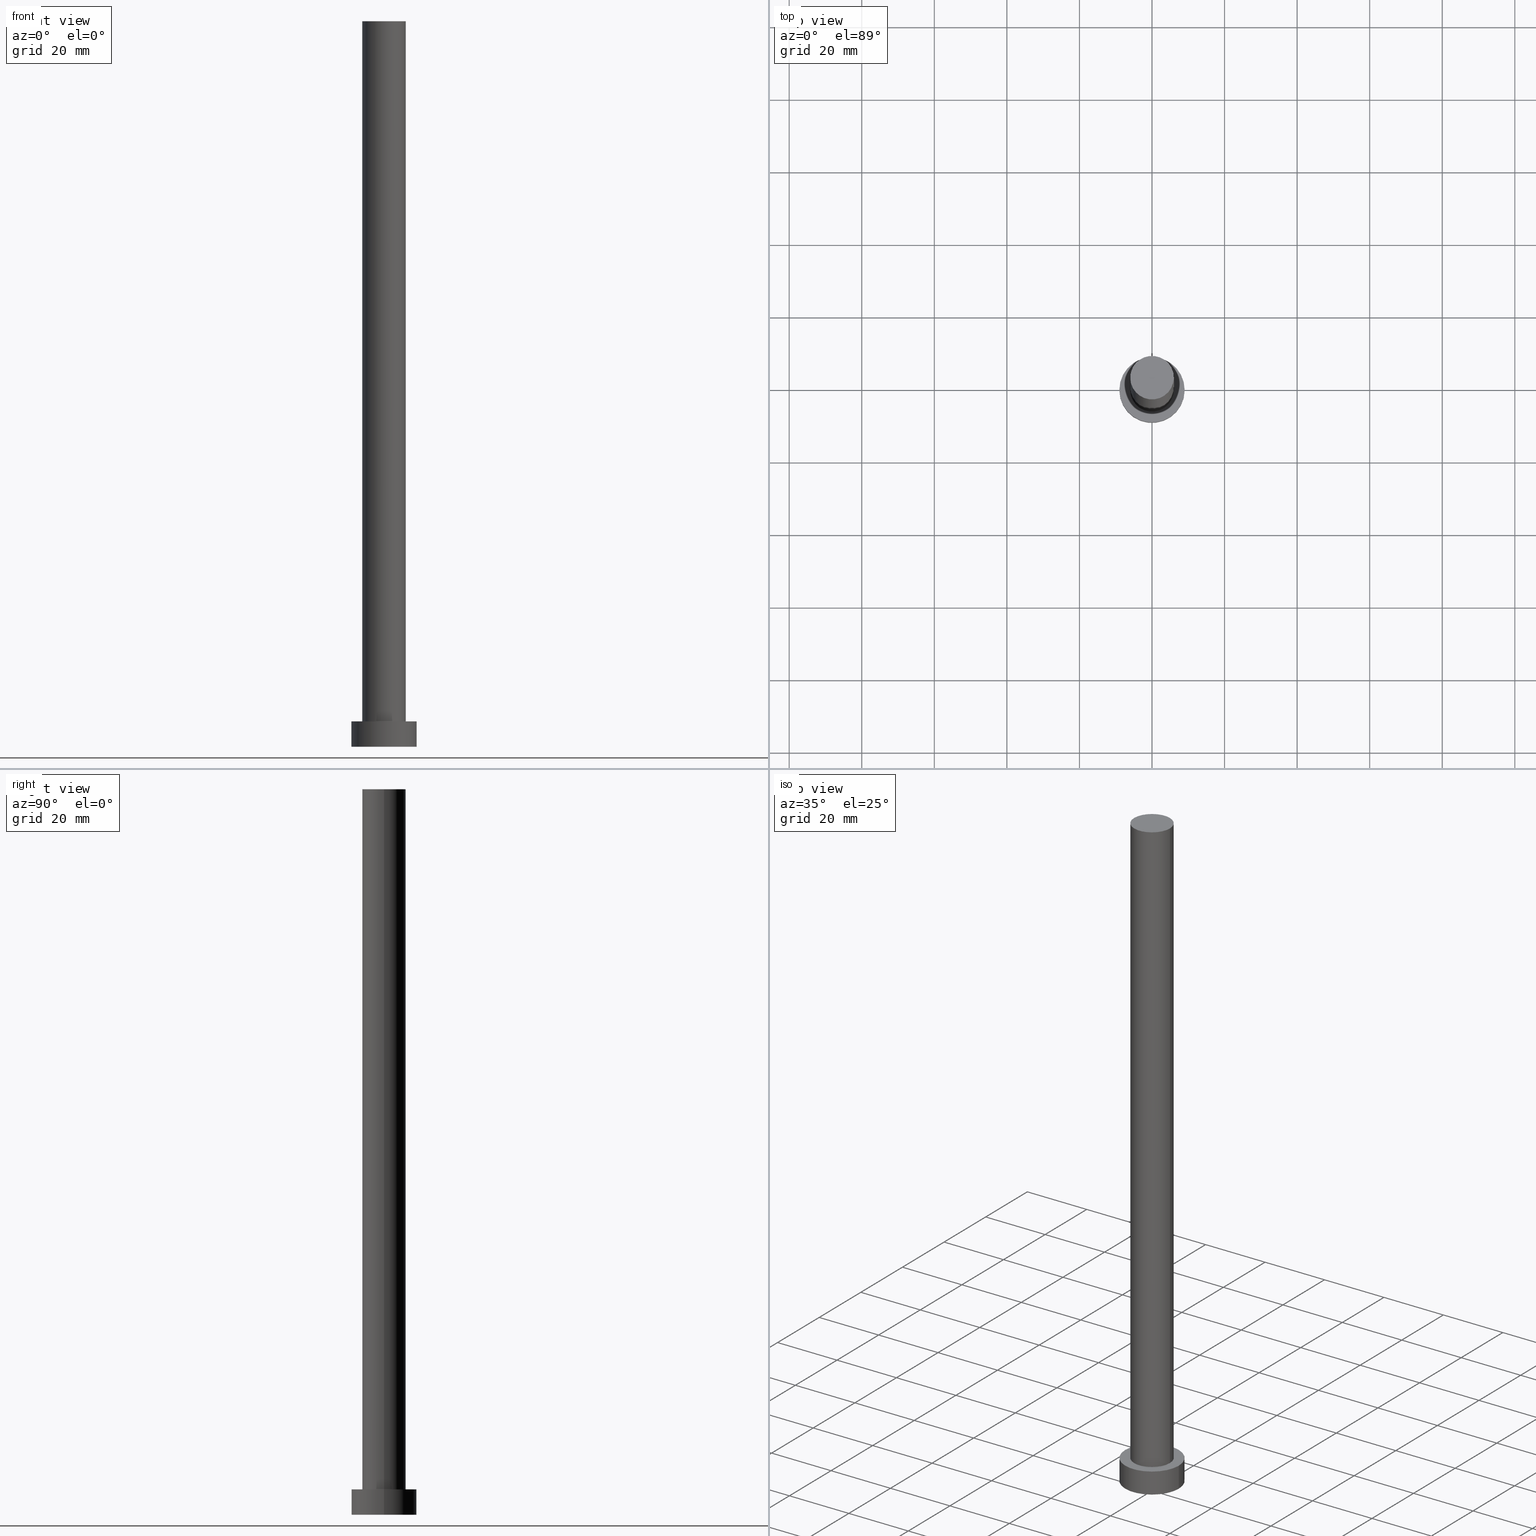
[diagram: canonical four-view strip — front | top / right | iso, engineering-drawing reading convention]
A machine part, canonical four-view strip (front | top / right | iso — engineering-drawing reading convention). The complete STEP part file that produces these views, byte-faithful:
ISO-10303-21;
HEADER;
FILE_DESCRIPTION (( 'STEP AP203' ),
    '1' );
FILE_NAME ('bf85.STEP',
    '2023-02-12T10:49:33',
    ( '' ),
    ( '' ),
    'SwSTEP 2.0',
    'SolidWorks 2019',
    '' );
FILE_SCHEMA (( 'CONFIG_CONTROL_DESIGN' ));
ENDSEC;

DATA;
#1 = ORIENTED_EDGE ( 'NONE', *, *, #144, .F. ) ;
#2 = EDGE_CURVE ( 'NONE', #11, #214, #76, .T. ) ;
#3 = EDGE_LOOP ( 'NONE', ( #149, #58 ) ) ;
#4 = VECTOR ( 'NONE', #139, 1000.000000000000000 ) ;
#5 = APPLICATION_CONTEXT ( 'configuration controlled 3d designs of mechanical parts and assemblies' ) ;
#6 = DIRECTION ( 'NONE',  ( -0.000000000000000000, -0.000000000000000000, -1.000000000000000000 ) ) ;
#7 = ADVANCED_BREP_SHAPE_REPRESENTATION ( 'bf85', ( #171, #148 ), #45 ) ;
#8 = LOCAL_TIME ( 11, 49, 33.00000000000000000, #161 ) ;
#9 = CYLINDRICAL_SURFACE ( 'NONE', #121, 6.000000000000000888 ) ;
#10 = CARTESIAN_POINT ( 'NONE',  ( -6.000000000000000888, 0.000000000000000000, 7.000000000000000000 ) ) ;
#11 = VERTEX_POINT ( 'NONE', #10 ) ;
#12 = DIRECTION ( 'NONE',  ( 0.000000000000000000, 0.000000000000000000, 1.000000000000000000 ) ) ;
#13 = DIRECTION ( 'NONE',  ( 1.000000000000000000, 0.000000000000000000, -0.000000000000000000 ) ) ;
#14 = EDGE_CURVE ( 'NONE', #214, #11, #44, .T. ) ;
#15 = CALENDAR_DATE ( 2023, 12, 2 ) ;
#16 = ORIENTED_EDGE ( 'NONE', *, *, #27, .T. ) ;
#17 = LINE ( 'NONE', #109, #4 ) ;
#18 = PERSON_AND_ORGANIZATION ( #208, #138 ) ;
#19 = PERSON_AND_ORGANIZATION_ROLE ( 'creator' ) ;
#20 = DIRECTION ( 'NONE',  ( 1.000000000000000000, 0.000000000000000000, -0.000000000000000000 ) ) ;
#21 = ADVANCED_FACE ( 'NONE', ( #136 ), #70, .T. ) ;
#22 = APPROVAL_ROLE ( '' ) ;
#23 = COORDINATED_UNIVERSAL_TIME_OFFSET ( 1, 0, .AHEAD. ) ;
#24 = PERSON_AND_ORGANIZATION_ROLE ( 'design_owner' ) ;
#25 = CC_DESIGN_PERSON_AND_ORGANIZATION_ASSIGNMENT ( #153, #51, ( #117 ) ) ;
#26 = AXIS2_PLACEMENT_3D ( 'NONE', #236, #89, #237 ) ;
#27 = EDGE_CURVE ( 'NONE', #211, #83, #106, .T. ) ;
#28 = PRODUCT ( 'bf85', 'bf85', '', ( #254 ) ) ;
#29 = DIRECTION ( 'NONE',  ( -0.000000000000000000, -0.000000000000000000, -1.000000000000000000 ) ) ;
#30 = CYLINDRICAL_SURFACE ( 'NONE', #156, 9.000000000000000000 ) ;
#31 = CC_DESIGN_SECURITY_CLASSIFICATION ( #117, ( #163 ) ) ;
#32 = DIRECTION ( 'NONE',  ( 0.000000000000000000, 0.000000000000000000, 1.000000000000000000 ) ) ;
#33 = PRODUCT_RELATED_PRODUCT_CATEGORY ( 'detail', '', ( #28 ) ) ;
#34 = COORDINATED_UNIVERSAL_TIME_OFFSET ( 1, 0, .AHEAD. ) ;
#35 = CARTESIAN_POINT ( 'NONE',  ( -9.000000000000000000, 0.000000000000000000, 7.000000000000000000 ) ) ;
#36 = ORIENTED_EDGE ( 'NONE', *, *, #14, .T. ) ;
#37 = LINE ( 'NONE', #152, #255 ) ;
#38 = CC_DESIGN_APPROVAL ( #57, ( #181 ) ) ;
#39 = CC_DESIGN_DATE_AND_TIME_ASSIGNMENT ( #232, #167, ( #181 ) ) ;
#40 = APPLICATION_PROTOCOL_DEFINITION ( 'international standard', 'config_control_design', 1994, #61 ) ;
#41 = ORIENTED_EDGE ( 'NONE', *, *, #234, .T. ) ;
#42 = EDGE_LOOP ( 'NONE', ( #212, #63 ) ) ;
#43 = ORIENTED_EDGE ( 'NONE', *, *, #203, .F. ) ;
#44 = CIRCLE ( 'NONE', #216, 6.000000000000000888 ) ;
#45 =( GEOMETRIC_REPRESENTATION_CONTEXT ( 3 ) GLOBAL_UNCERTAINTY_ASSIGNED_CONTEXT ( ( #238 ) ) GLOBAL_UNIT_ASSIGNED_CONTEXT ( ( #79, #220, #250 ) ) REPRESENTATION_CONTEXT ( 'NONE', 'WORKASPACE' ) );
#46 = FACE_OUTER_BOUND ( 'NONE', #100, .T. ) ;
#47 = CARTESIAN_POINT ( 'NONE',  ( 0.000000000000000000, 0.000000000000000000, 7.000000000000000000 ) ) ;
#48 = AXIS2_PLACEMENT_3D ( 'NONE', #47, #173, #72 ) ;
#49 = CC_DESIGN_APPROVAL ( #107, ( #163 ) ) ;
#50 = FACE_OUTER_BOUND ( 'NONE', #188, .T. ) ;
#51 = PERSON_AND_ORGANIZATION_ROLE ( 'classification_officer' ) ;
#52 = APPROVAL_ROLE ( '' ) ;
#53 = ORIENTED_EDGE ( 'NONE', *, *, #190, .T. ) ;
#54 = DIRECTION ( 'NONE',  ( 0.000000000000000000, 0.000000000000000000, 1.000000000000000000 ) ) ;
#55 = AXIS2_PLACEMENT_3D ( 'NONE', #207, #246, #162 ) ;
#56 = CARTESIAN_POINT ( 'NONE',  ( -9.000000000000000000, 0.000000000000000000, 7.000000000000000000 ) ) ;
#57 = APPROVAL ( #186, 'NEUR�EN�' ) ;
#58 = ORIENTED_EDGE ( 'NONE', *, *, #14, .F. ) ;
#59 = DIRECTION ( 'NONE',  ( 0.000000000000000000, 0.000000000000000000, 1.000000000000000000 ) ) ;
#60 = FACE_OUTER_BOUND ( 'NONE', #200, .T. ) ;
#61 = APPLICATION_CONTEXT ( 'configuration controlled 3d designs of mechanical parts and assemblies' ) ;
#62 = ADVANCED_FACE ( 'NONE', ( #50 ), #30, .T. ) ;
#63 = ORIENTED_EDGE ( 'NONE', *, *, #234, .F. ) ;
#64 = APPROVAL ( #180, 'NEUR�EN�' ) ;
#65 = AXIS2_PLACEMENT_3D ( 'NONE', #128, #205, #206 ) ;
#66 = ORIENTED_EDGE ( 'NONE', *, *, #98, .T. ) ;
#67 = CLOSED_SHELL ( 'NONE', ( #87, #62, #120, #127, #189, #21, #243 ) ) ;
#68 = CARTESIAN_POINT ( 'NONE',  ( 9.000000000000000000, 1.102182119232617714E-15, 7.000000000000000000 ) ) ;
#69 = EDGE_CURVE ( 'NONE', #83, #222, #88, .T. ) ;
#70 = CYLINDRICAL_SURFACE ( 'NONE', #253, 6.000000000000000888 ) ;
#71 = ORIENTED_EDGE ( 'NONE', *, *, #27, .F. ) ;
#72 = DIRECTION ( 'NONE',  ( 1.000000000000000000, 0.000000000000000000, 0.000000000000000000 ) ) ;
#73 = DATE_AND_TIME ( #183, #170 ) ;
#74 = DIRECTION ( 'NONE',  ( 0.000000000000000000, 0.000000000000000000, 1.000000000000000000 ) ) ;
#75 = CALENDAR_DATE ( 2023, 12, 2 ) ;
#76 = CIRCLE ( 'NONE', #48, 6.000000000000000888 ) ;
#77 = LOCAL_TIME ( 11, 49, 33.00000000000000000, #23 ) ;
#78 = ORIENTED_EDGE ( 'NONE', *, *, #144, .T. ) ;
#79 =( LENGTH_UNIT ( ) NAMED_UNIT ( * ) SI_UNIT ( .MILLI., .METRE. ) );
#80 = DIRECTION ( 'NONE',  ( 1.000000000000000000, 0.000000000000000000, 0.000000000000000000 ) ) ;
#81 = DATE_AND_TIME ( #75, #90 ) ;
#82 = CIRCLE ( 'NONE', #185, 6.000000000000000888 ) ;
#83 = VERTEX_POINT ( 'NONE', #68 ) ;
#84 = CALENDAR_DATE ( 2023, 12, 2 ) ;
#85 = PERSON_AND_ORGANIZATION ( #208, #138 ) ;
#86 = CARTESIAN_POINT ( 'NONE',  ( 9.000000000000000000, 1.102182119232617714E-15, 7.000000000000000000 ) ) ;
#87 = ADVANCED_FACE ( 'NONE', ( #46 ), #9, .T. ) ;
#88 = LINE ( 'NONE', #86, #192 ) ;
#89 = DIRECTION ( 'NONE',  ( 0.000000000000000000, 0.000000000000000000, 1.000000000000000000 ) ) ;
#90 = LOCAL_TIME ( 11, 49, 33.00000000000000000, #204 ) ;
#91 = PERSON_AND_ORGANIZATION ( #208, #138 ) ;
#92 = DIRECTION ( 'NONE',  ( 1.000000000000000000, 0.000000000000000000, 0.000000000000000000 ) ) ;
#93 = CARTESIAN_POINT ( 'NONE',  ( -6.000000000000000888, 0.000000000000000000, 200.0000000000000000 ) ) ;
#94 = PERSON_AND_ORGANIZATION_ROLE ( 'design_supplier' ) ;
#95 = ORIENTED_EDGE ( 'NONE', *, *, #164, .T. ) ;
#96 = CC_DESIGN_PERSON_AND_ORGANIZATION_ASSIGNMENT ( #118, #24, ( #28 ) ) ;
#97 = CC_DESIGN_DATE_AND_TIME_ASSIGNMENT ( #73, #177, ( #117 ) ) ;
#98 = EDGE_CURVE ( 'NONE', #133, #135, #235, .T. ) ;
#99 = LOCAL_TIME ( 11, 49, 33.00000000000000000, #165 ) ;
#100 = EDGE_LOOP ( 'NONE', ( #176, #130, #36, #1 ) ) ;
#101 = CALENDAR_DATE ( 2023, 12, 2 ) ;
#102 = EDGE_CURVE ( 'NONE', #133, #214, #17, .T. ) ;
#103 = DIRECTION ( 'NONE',  ( 0.000000000000000000, 0.000000000000000000, 1.000000000000000000 ) ) ;
#104 = CC_DESIGN_PERSON_AND_ORGANIZATION_ASSIGNMENT ( #241, #94, ( #163 ) ) ;
#105 = CARTESIAN_POINT ( 'NONE',  ( 0.000000000000000000, 0.000000000000000000, 7.000000000000000000 ) ) ;
#106 = CIRCLE ( 'NONE', #26, 9.000000000000000000 ) ;
#107 = APPROVAL ( #123, 'NEUR�EN�' ) ;
#108 = CIRCLE ( 'NONE', #219, 9.000000000000000000 ) ;
#109 = CARTESIAN_POINT ( 'NONE',  ( 6.000000000000000888, 7.347880794884120722E-16, 200.0000000000000000 ) ) ;
#110 = DIRECTION ( 'NONE',  ( 1.000000000000000000, 0.000000000000000000, 0.000000000000000000 ) ) ;
#111 = APPROVAL_DATE_TIME ( #249, #107 ) ;
#112 = PLANE ( 'NONE',  #231 ) ;
#113 = AXIS2_PLACEMENT_3D ( 'NONE', #145, #229, #80 ) ;
#114 = AXIS2_PLACEMENT_3D ( 'NONE', #223, #54, #20 ) ;
#115 = PERSON_AND_ORGANIZATION ( #208, #138 ) ;
#116 = EDGE_LOOP ( 'NONE', ( #16, #147 ) ) ;
#117 = SECURITY_CLASSIFICATION ( '', '', #225 ) ;
#118 = PERSON_AND_ORGANIZATION ( #208, #138 ) ;
#119 = CC_DESIGN_APPROVAL ( #64, ( #117 ) ) ;
#120 = ADVANCED_FACE ( 'NONE', ( #60 ), #159, .T. ) ;
#121 = AXIS2_PLACEMENT_3D ( 'NONE', #194, #29, #174 ) ;
#122 = VECTOR ( 'NONE', #141, 1000.000000000000000 ) ;
#123 = APPROVAL_STATUS ( 'not_yet_approved' ) ;
#124 = CARTESIAN_POINT ( 'NONE',  ( 0.000000000000000000, 0.000000000000000000, 200.0000000000000000 ) ) ;
#125 = ORIENTED_EDGE ( 'NONE', *, *, #190, .F. ) ;
#126 = CARTESIAN_POINT ( 'NONE',  ( 0.000000000000000000, 0.000000000000000000, 0.000000000000000000 ) ) ;
#127 = ADVANCED_FACE ( 'NONE', ( #132, #142 ), #209, .T. ) ;
#128 = CARTESIAN_POINT ( 'NONE',  ( 0.000000000000000000, 0.000000000000000000, 0.000000000000000000 ) ) ;
#129 = CARTESIAN_POINT ( 'NONE',  ( 0.000000000000000000, 0.000000000000000000, 7.000000000000000000 ) ) ;
#130 = ORIENTED_EDGE ( 'NONE', *, *, #102, .T. ) ;
#131 = CIRCLE ( 'NONE', #224, 9.000000000000000000 ) ;
#132 = FACE_BOUND ( 'NONE', #3, .T. ) ;
#133 = VERTEX_POINT ( 'NONE', #251 ) ;
#134 = APPROVAL_DATE_TIME ( #146, #57 ) ;
#135 = VERTEX_POINT ( 'NONE', #93 ) ;
#136 = FACE_OUTER_BOUND ( 'NONE', #151, .T. ) ;
#137 = PLANE ( 'NONE',  #114 ) ;
#138 = ORGANIZATION ( 'NEUR�EN�', 'NEUR�EN�', '' ) ;
#139 = DIRECTION ( 'NONE',  ( -0.000000000000000000, -0.000000000000000000, -1.000000000000000000 ) ) ;
#140 = APPROVAL_ROLE ( '' ) ;
#141 = DIRECTION ( 'NONE',  ( -0.000000000000000000, -0.000000000000000000, -1.000000000000000000 ) ) ;
#142 = FACE_OUTER_BOUND ( 'NONE', #116, .T. ) ;
#143 = LINE ( 'NONE', #35, #122 ) ;
#144 = EDGE_CURVE ( 'NONE', #135, #11, #37, .T. ) ;
#145 = CARTESIAN_POINT ( 'NONE',  ( 0.000000000000000000, 0.000000000000000000, 200.0000000000000000 ) ) ;
#146 = DATE_AND_TIME ( #84, #99 ) ;
#147 = ORIENTED_EDGE ( 'NONE', *, *, #203, .T. ) ;
#148 = AXIS2_PLACEMENT_3D ( 'NONE', #187, #210, #169 ) ;
#149 = ORIENTED_EDGE ( 'NONE', *, *, #2, .F. ) ;
#150 = AXIS2_PLACEMENT_3D ( 'NONE', #129, #32, #13 ) ;
#151 = EDGE_LOOP ( 'NONE', ( #178, #239, #78, #230 ) ) ;
#152 = CARTESIAN_POINT ( 'NONE',  ( -6.000000000000000888, 0.000000000000000000, 200.0000000000000000 ) ) ;
#153 = PERSON_AND_ORGANIZATION ( #208, #138 ) ;
#154 = ORIENTED_EDGE ( 'NONE', *, *, #69, .T. ) ;
#155 = SHAPE_DEFINITION_REPRESENTATION ( #240, #7 ) ;
#156 = AXIS2_PLACEMENT_3D ( 'NONE', #105, #221, #175 ) ;
#157 = CARTESIAN_POINT ( 'NONE',  ( 0.000000000000000000, 0.000000000000000000, 0.000000000000000000 ) ) ;
#158 = APPROVAL_PERSON_ORGANIZATION ( #115, #57, #22 ) ;
#159 = CYLINDRICAL_SURFACE ( 'NONE', #55, 9.000000000000000000 ) ;
#160 = CC_DESIGN_PERSON_AND_ORGANIZATION_ASSIGNMENT ( #85, #213, ( #181 ) ) ;
#161 = COORDINATED_UNIVERSAL_TIME_OFFSET ( 1, 0, .AHEAD. ) ;
#162 = DIRECTION ( 'NONE',  ( -1.000000000000000000, 0.000000000000000000, 0.000000000000000000 ) ) ;
#163 = PRODUCT_DEFINITION_FORMATION_WITH_SPECIFIED_SOURCE ( 'LIBOVOLN�', '', #28, .NOT_KNOWN. ) ;
#164 = EDGE_CURVE ( 'NONE', #135, #133, #82, .T. ) ;
#165 = COORDINATED_UNIVERSAL_TIME_OFFSET ( 1, 0, .AHEAD. ) ;
#166 = EDGE_LOOP ( 'NONE', ( #95, #66 ) ) ;
#167 = DATE_TIME_ROLE ( 'creation_date' ) ;
#168 = ORIENTED_EDGE ( 'NONE', *, *, #252, .T. ) ;
#169 = DIRECTION ( 'NONE',  ( 1.000000000000000000, 0.000000000000000000, 0.000000000000000000 ) ) ;
#170 = LOCAL_TIME ( 11, 49, 33.00000000000000000, #34 ) ;
#171 = MANIFOLD_SOLID_BREP ( 'P�idat vysunut�m3', #67 ) ;
#172 = PERSON_AND_ORGANIZATION ( #208, #138 ) ;
#173 = DIRECTION ( 'NONE',  ( 0.000000000000000000, 0.000000000000000000, 1.000000000000000000 ) ) ;
#174 = DIRECTION ( 'NONE',  ( -1.000000000000000000, 0.000000000000000000, 0.000000000000000000 ) ) ;
#175 = DIRECTION ( 'NONE',  ( -1.000000000000000000, 0.000000000000000000, 0.000000000000000000 ) ) ;
#176 = ORIENTED_EDGE ( 'NONE', *, *, #98, .F. ) ;
#177 = DATE_TIME_ROLE ( 'classification_date' ) ;
#178 = ORIENTED_EDGE ( 'NONE', *, *, #102, .F. ) ;
#179 = DIRECTION ( 'NONE',  ( 1.000000000000000000, 0.000000000000000000, -0.000000000000000000 ) ) ;
#180 = APPROVAL_STATUS ( 'not_yet_approved' ) ;
#181 = PRODUCT_DEFINITION ( 'NEZN�M�', '', #163, #217 ) ;
#182 = FACE_OUTER_BOUND ( 'NONE', #166, .T. ) ;
#183 = CALENDAR_DATE ( 2023, 12, 2 ) ;
#184 = FACE_OUTER_BOUND ( 'NONE', #42, .T. ) ;
#185 = AXIS2_PLACEMENT_3D ( 'NONE', #227, #59, #215 ) ;
#186 = APPROVAL_STATUS ( 'not_yet_approved' ) ;
#187 = CARTESIAN_POINT ( 'NONE',  ( 0.000000000000000000, 0.000000000000000000, 0.000000000000000000 ) ) ;
#188 = EDGE_LOOP ( 'NONE', ( #43, #154, #41, #125 ) ) ;
#189 = ADVANCED_FACE ( 'NONE', ( #184 ), #112, .F. ) ;
#190 = EDGE_CURVE ( 'NONE', #211, #202, #143, .T. ) ;
#191 = DIRECTION ( 'NONE',  ( -0.000000000000000000, -0.000000000000000000, -1.000000000000000000 ) ) ;
#192 = VECTOR ( 'NONE', #191, 1000.000000000000000 ) ;
#193 = APPROVAL_PERSON_ORGANIZATION ( #172, #107, #140 ) ;
#194 = CARTESIAN_POINT ( 'NONE',  ( 0.000000000000000000, 0.000000000000000000, 200.0000000000000000 ) ) ;
#195 = CARTESIAN_POINT ( 'NONE',  ( 0.000000000000000000, 0.000000000000000000, 7.000000000000000000 ) ) ;
#196 = CARTESIAN_POINT ( 'NONE',  ( 9.000000000000000000, 1.102182119232617714E-15, 0.000000000000000000 ) ) ;
#197 = DIRECTION ( 'NONE',  ( -1.000000000000000000, 0.000000000000000000, 0.000000000000000000 ) ) ;
#198 = CIRCLE ( 'NONE', #65, 9.000000000000000000 ) ;
#199 = APPROVAL_PERSON_ORGANIZATION ( #18, #64, #52 ) ;
#200 = EDGE_LOOP ( 'NONE', ( #247, #71, #53, #168 ) ) ;
#201 = CC_DESIGN_PERSON_AND_ORGANIZATION_ASSIGNMENT ( #91, #19, ( #163 ) ) ;
#202 = VERTEX_POINT ( 'NONE', #244 ) ;
#203 = EDGE_CURVE ( 'NONE', #83, #211, #131, .T. ) ;
#204 = COORDINATED_UNIVERSAL_TIME_OFFSET ( 1, 0, .AHEAD. ) ;
#205 = DIRECTION ( 'NONE',  ( 0.000000000000000000, 0.000000000000000000, 1.000000000000000000 ) ) ;
#206 = DIRECTION ( 'NONE',  ( 1.000000000000000000, 0.000000000000000000, 0.000000000000000000 ) ) ;
#207 = CARTESIAN_POINT ( 'NONE',  ( 0.000000000000000000, 0.000000000000000000, 7.000000000000000000 ) ) ;
#208 = PERSON ( 'NEUR�EN�', 'NEUR�EN�', 'NEUR�EN�', ('NEUR�EN�'), ('NEUR�EN�'), ('NEUR�EN�') ) ;
#209 = PLANE ( 'NONE',  #150 ) ;
#210 = DIRECTION ( 'NONE',  ( 0.000000000000000000, 0.000000000000000000, 1.000000000000000000 ) ) ;
#211 = VERTEX_POINT ( 'NONE', #56 ) ;
#212 = ORIENTED_EDGE ( 'NONE', *, *, #252, .F. ) ;
#213 = PERSON_AND_ORGANIZATION_ROLE ( 'creator' ) ;
#214 = VERTEX_POINT ( 'NONE', #228 ) ;
#215 = DIRECTION ( 'NONE',  ( 1.000000000000000000, 0.000000000000000000, 0.000000000000000000 ) ) ;
#216 = AXIS2_PLACEMENT_3D ( 'NONE', #195, #103, #218 ) ;
#217 = DESIGN_CONTEXT ( 'detailed design', #61, 'design' ) ;
#218 = DIRECTION ( 'NONE',  ( 1.000000000000000000, 0.000000000000000000, 0.000000000000000000 ) ) ;
#219 = AXIS2_PLACEMENT_3D ( 'NONE', #126, #248, #110 ) ;
#220 =( NAMED_UNIT ( * ) PLANE_ANGLE_UNIT ( ) SI_UNIT ( $, .RADIAN. ) );
#221 = DIRECTION ( 'NONE',  ( -0.000000000000000000, -0.000000000000000000, -1.000000000000000000 ) ) ;
#222 = VERTEX_POINT ( 'NONE', #196 ) ;
#223 = CARTESIAN_POINT ( 'NONE',  ( 0.000000000000000000, 0.000000000000000000, 200.0000000000000000 ) ) ;
#224 = AXIS2_PLACEMENT_3D ( 'NONE', #226, #12, #92 ) ;
#225 = SECURITY_CLASSIFICATION_LEVEL ( 'unclassified' ) ;
#226 = CARTESIAN_POINT ( 'NONE',  ( 0.000000000000000000, 0.000000000000000000, 7.000000000000000000 ) ) ;
#227 = CARTESIAN_POINT ( 'NONE',  ( 0.000000000000000000, 0.000000000000000000, 200.0000000000000000 ) ) ;
#228 = CARTESIAN_POINT ( 'NONE',  ( 6.000000000000000888, 7.347880794884120722E-16, 7.000000000000000000 ) ) ;
#229 = DIRECTION ( 'NONE',  ( 0.000000000000000000, 0.000000000000000000, 1.000000000000000000 ) ) ;
#230 = ORIENTED_EDGE ( 'NONE', *, *, #2, .T. ) ;
#231 = AXIS2_PLACEMENT_3D ( 'NONE', #157, #74, #179 ) ;
#232 = DATE_AND_TIME ( #101, #77 ) ;
#233 = APPLICATION_PROTOCOL_DEFINITION ( 'international standard', 'config_control_design', 1994, #5 ) ;
#234 = EDGE_CURVE ( 'NONE', #222, #202, #198, .T. ) ;
#235 = CIRCLE ( 'NONE', #113, 6.000000000000000888 ) ;
#236 = CARTESIAN_POINT ( 'NONE',  ( 0.000000000000000000, 0.000000000000000000, 7.000000000000000000 ) ) ;
#237 = DIRECTION ( 'NONE',  ( 1.000000000000000000, 0.000000000000000000, 0.000000000000000000 ) ) ;
#238 = UNCERTAINTY_MEASURE_WITH_UNIT (LENGTH_MEASURE( 1.000000000000000082E-05 ), #79, 'distance_accuracy_value', 'NONE');
#239 = ORIENTED_EDGE ( 'NONE', *, *, #164, .F. ) ;
#240 = PRODUCT_DEFINITION_SHAPE ( 'NONE', 'NONE',  #181 ) ;
#241 = PERSON_AND_ORGANIZATION ( #208, #138 ) ;
#242 = APPROVAL_DATE_TIME ( #81, #64 ) ;
#243 = ADVANCED_FACE ( 'NONE', ( #182 ), #137, .T. ) ;
#244 = CARTESIAN_POINT ( 'NONE',  ( -9.000000000000000000, 0.000000000000000000, 0.000000000000000000 ) ) ;
#245 = DIRECTION ( 'NONE',  ( -0.000000000000000000, -0.000000000000000000, -1.000000000000000000 ) ) ;
#246 = DIRECTION ( 'NONE',  ( -0.000000000000000000, -0.000000000000000000, -1.000000000000000000 ) ) ;
#247 = ORIENTED_EDGE ( 'NONE', *, *, #69, .F. ) ;
#248 = DIRECTION ( 'NONE',  ( 0.000000000000000000, 0.000000000000000000, 1.000000000000000000 ) ) ;
#249 = DATE_AND_TIME ( #15, #8 ) ;
#250 =( NAMED_UNIT ( * ) SI_UNIT ( $, .STERADIAN. ) SOLID_ANGLE_UNIT ( ) );
#251 = CARTESIAN_POINT ( 'NONE',  ( 6.000000000000000888, 7.347880794884120722E-16, 200.0000000000000000 ) ) ;
#252 = EDGE_CURVE ( 'NONE', #202, #222, #108, .T. ) ;
#253 = AXIS2_PLACEMENT_3D ( 'NONE', #124, #6, #197 ) ;
#254 = MECHANICAL_CONTEXT ( 'NONE', #5, 'mechanical' ) ;
#255 = VECTOR ( 'NONE', #245, 1000.000000000000000 ) ;
ENDSEC;
END-ISO-10303-21;
